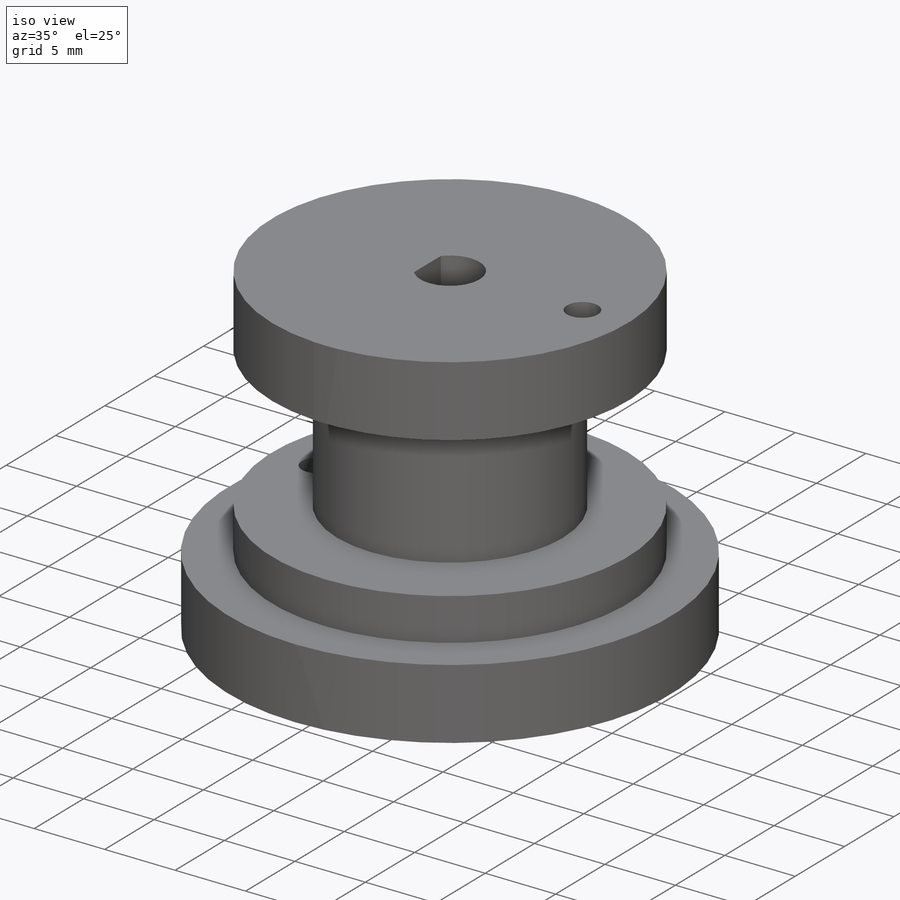
[diagram: iso view]
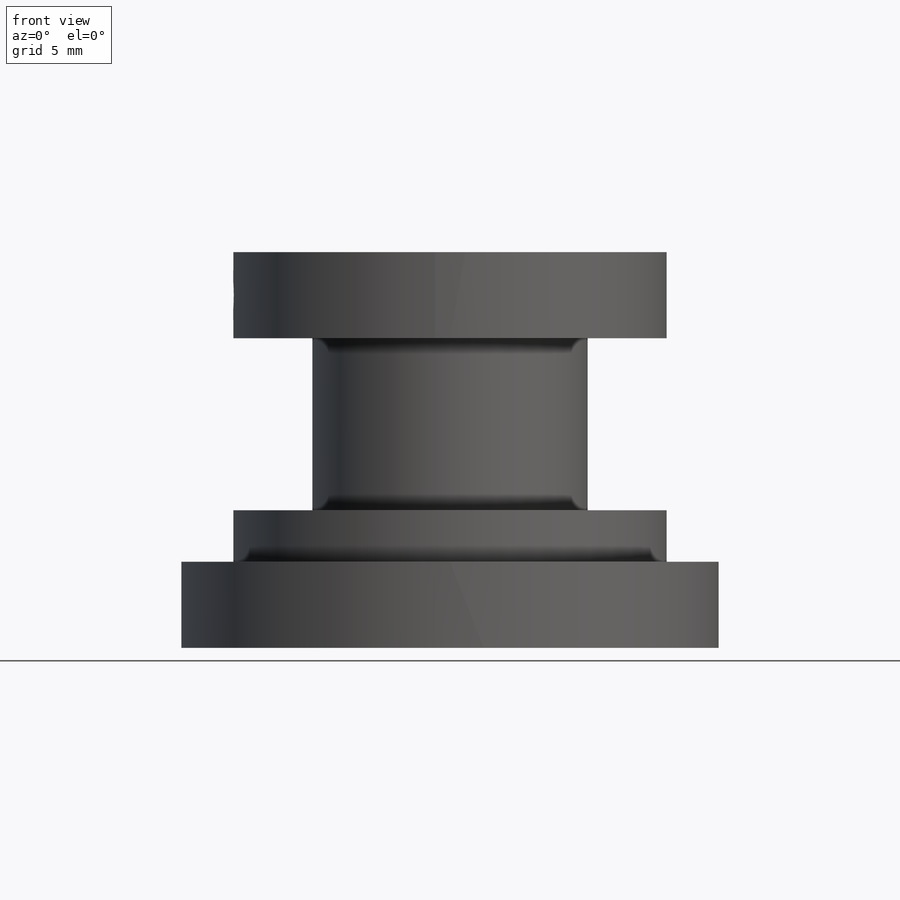
[diagram: front view]
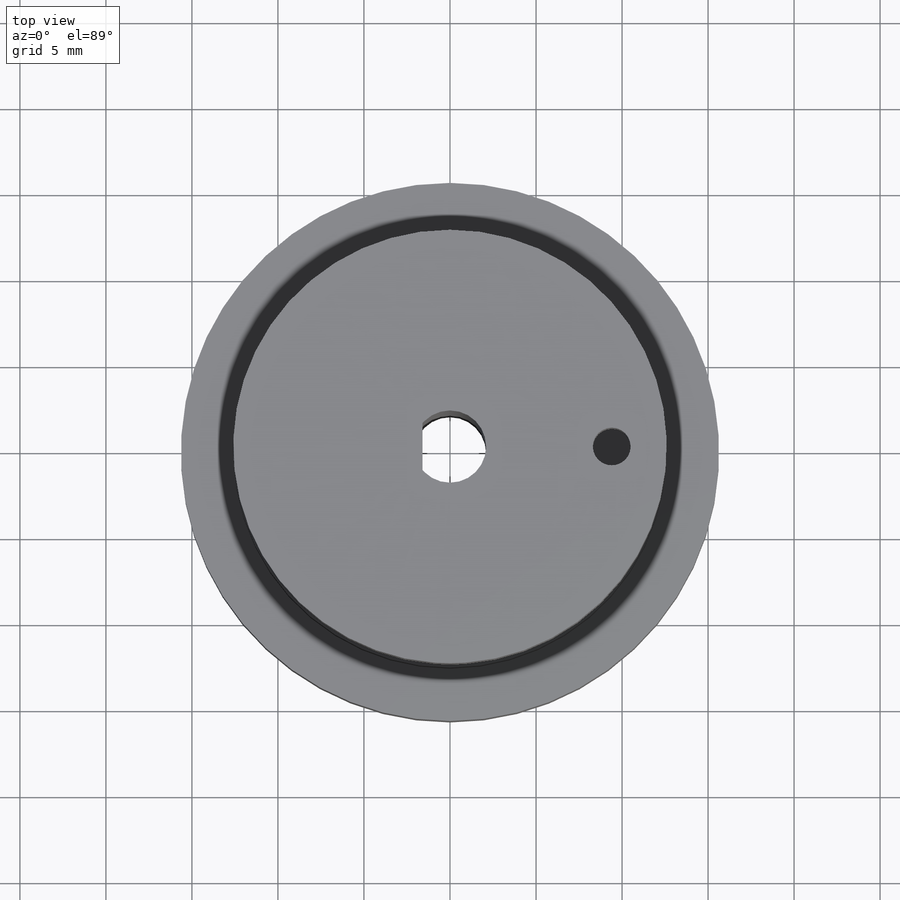
[diagram: top view]
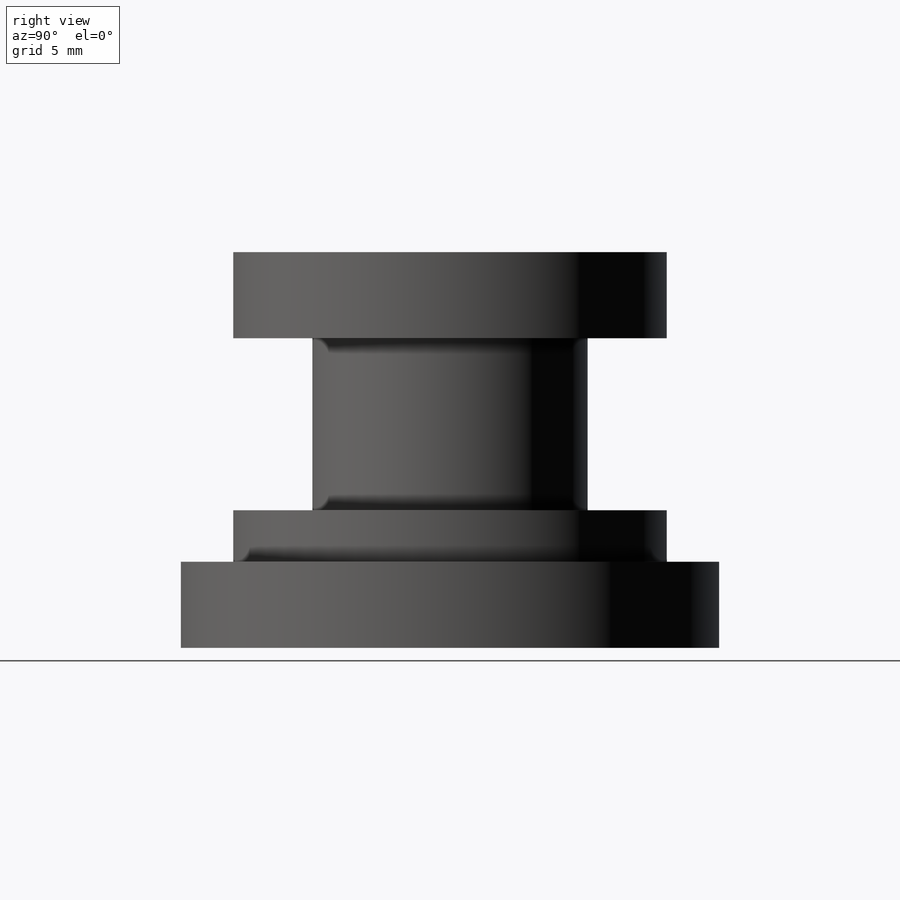
[diagram: right view]
SOLIDWORKS PART (.sldprt)
format: sldprt  version: not decoded by parser v0  size: 266,240 bytes
history: native  units: mm
features: sketch x14, extrude x6, cut_extrude x6, material x1, plane x1, hole x1 (+12 scaffold rows collapsed)
feature tree (41):
  scaffold x12  (default folders/planes/origin — collapsed)
  material  "Material <not specified>"
  sketch  "Sketch1"  dims[D1=4.75mm]
  extrude  "Boss-Extrude1"  Depth=10mm
  sketch  "Sketch2"  dims[D1=11.0mm]
  sketch  "Sketch3"  dims[D1=11.0mm]
  extrude  "Boss-Extrude2"  Depth=3mm
  sketch  "Sketch4"  dims[D1=3.5mm]
  cut_extrude  "Cut-Extrude4"  [1 undecoded]
  extrude  "Boss-Extrude4"  Depth=5mm
  sketch  "Sketch5"  dims[D1=2.05mm]
  cut_extrude  "Cut-Extrude5"  [1 undecoded]
  sketch  "Sketch6"  dims[D1=2.1mm D2=1.0mm]
  extrude  "Boss-Extrude5"  Depth=8mm
  plane  "Plane1"
  hole  "Tap Drill for M2x0.4 Tap1"  Diameter=1.6mm Depth=16mm
  sketch  "Sketch15"  dims[D1=2.5mm]
  sketch  "Sketch14"  dims[hole-wizard template sketch: 47 standard entries collapsed; hole parameters kept: c15.Hole Depth=16.0mm c15.D3=~14.816244mm c15.Drill Angle=118.0deg]
  sketch  "Sketch16"
  extrude  "Boss-Extrude6"  Depth=5mm
  sketch  "Sketch17"  dims[D1=~1.701185mm]
  cut_extrude  "Cut-Extrude6"  Depth=5mm
  sketch  "Sketch18"  dims[D1=9.4mm]
  sketch  "Sketch19"  dims[D1=9.4mm]
  cut_extrude  "Cut-Extrude9"  [1 undecoded]
  cut_extrude  "Cut-Extrude10"  Depth=10mm
  sketch  "Sketch21"  dims[D1=~0.920794mm]
  sketch  "Sketch22"  dims[D1=1.0mm D2=2.1mm]
  cut_extrude  "Cut-Extrude11"  [1 undecoded]
  extrude  "Boss-Extrude8"  Depth=42mm
decode coverage: 22 of 27 modeling features carry decoded parameters
note: ~ marks probable driven/reference dimensions
note: 4 parameter values undecoded
summary: no parameter record found for 4 features
note: suppression state not decoded; provenance and decode notes live in map.json
